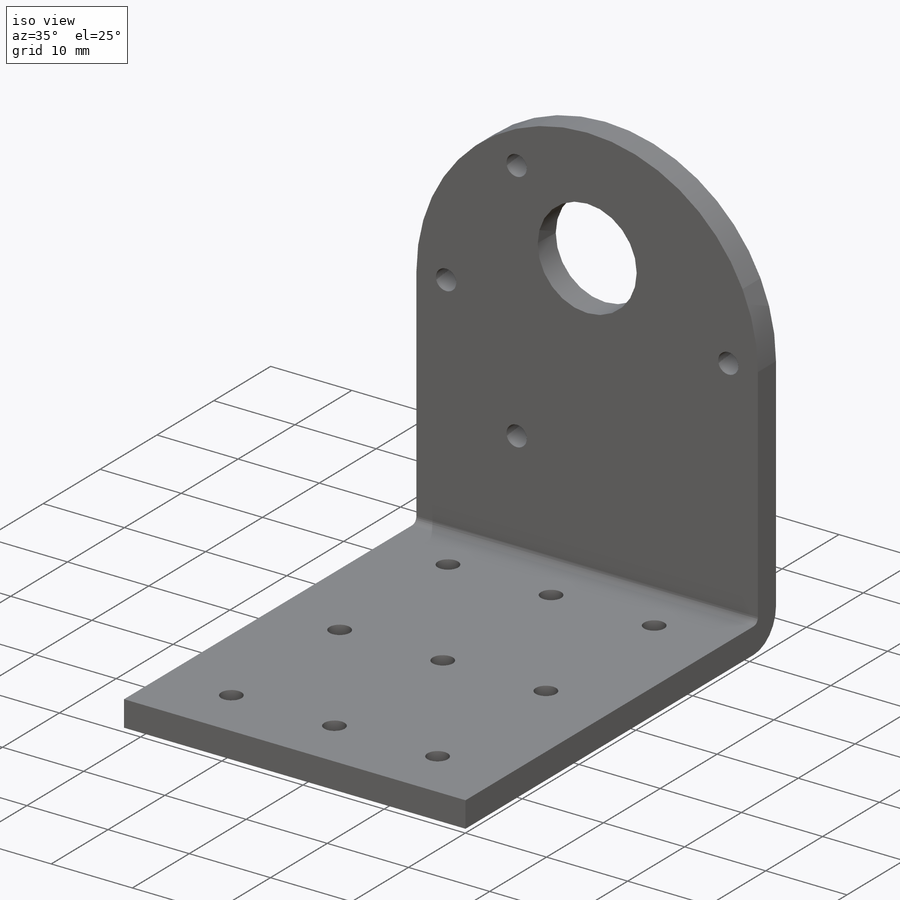
[diagram: iso view]
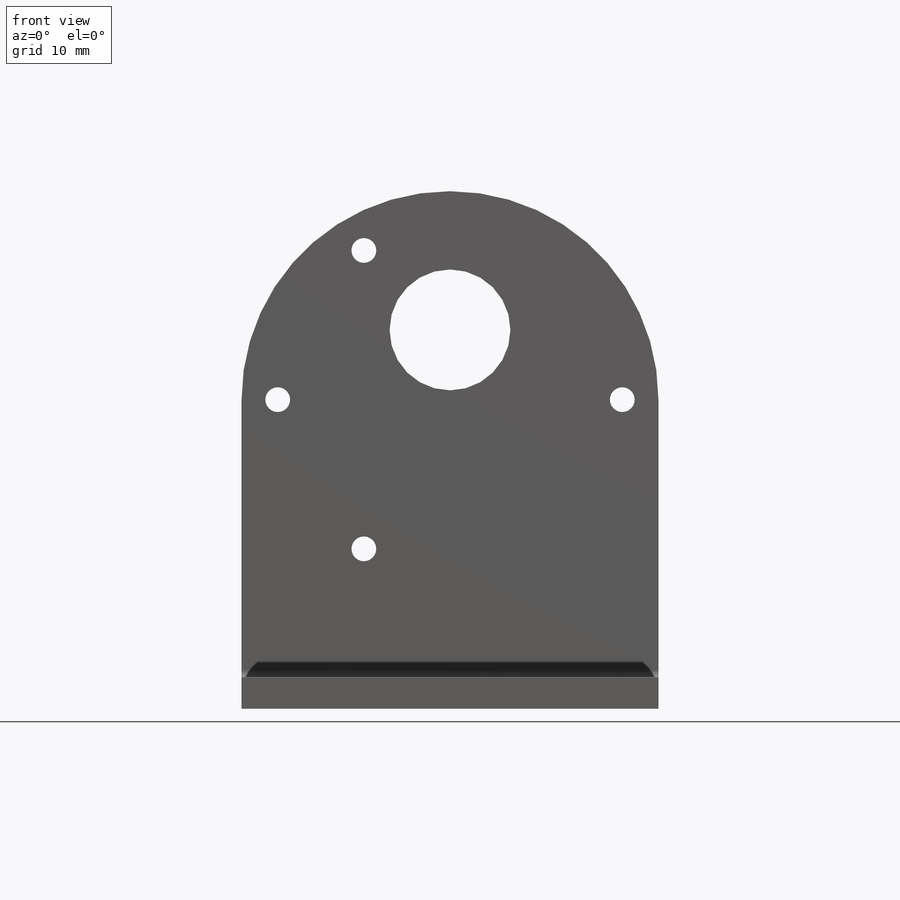
[diagram: front view]
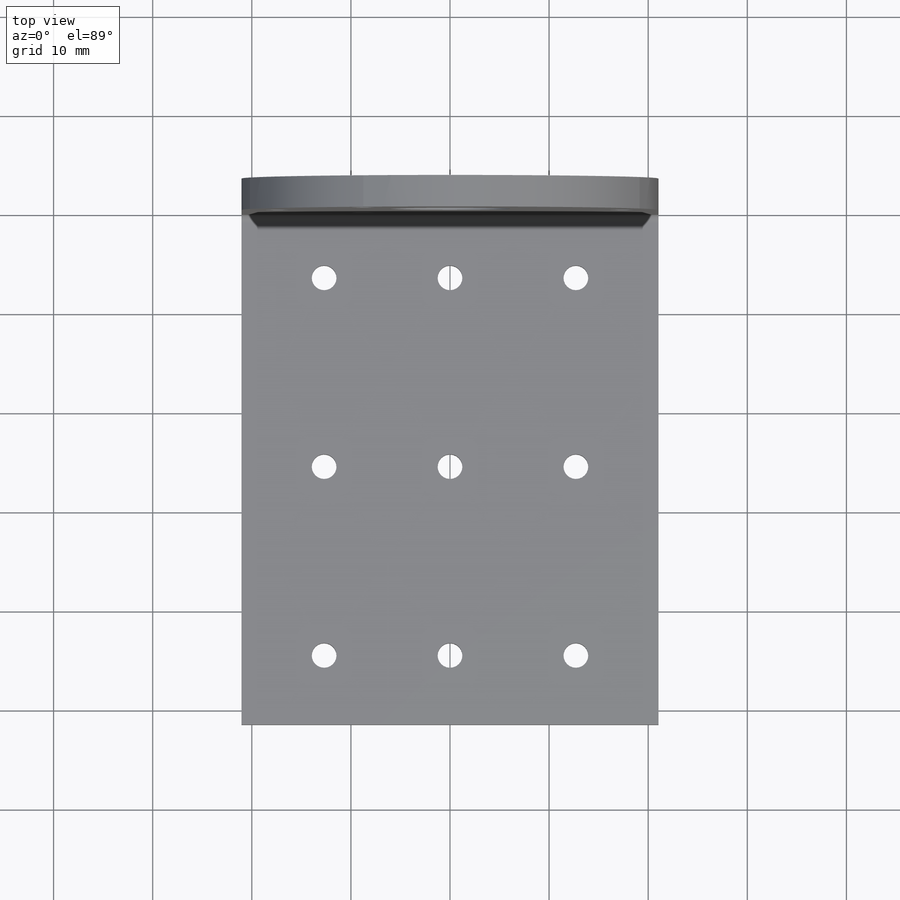
[diagram: top view]
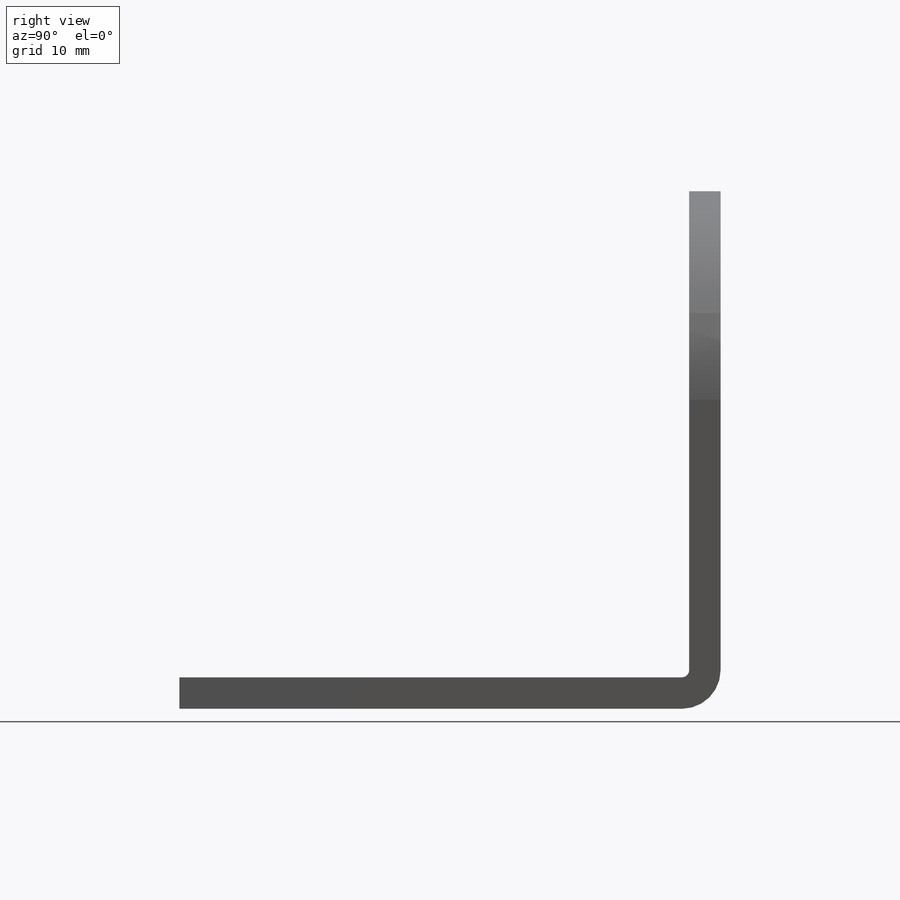
[diagram: right view]
SOLIDWORKS PART (.sldprt)
format: sldprt  version: not decoded by parser v0  size: 458,752 bytes
history: native  units: mm
features: sketch x23, sheet_metal_op x8, pattern_circular x7, plane x3, hole x2, pattern_linear x2, material x1, fillet x1, thread x1, cut_extrude x1 + 13 further entries (+10 scaffold rows collapsed)
feature tree (72):
  scaffold x10  (default folders/planes/origin — collapsed)
  material  "Materiale <non specificato>"
  plane  "Piano frontale"
  plane  "Piano superiore"
  plane  "Piano destro"
  sketch  "Schizzo1"  dims[c1.D2=19.15mm c1.D1=~80.532941mm c2.D2=~81.237311mm c2.D1=42.0624mm c3.D2=52.2224mm c3.D3=52.2224mm c3.D1=0.7366mm c4.D2=0.5 c4.D3=0.0mm c4.D6=500.0mm]
  sheet_metal_op  "Base-Flangia1"
  sketch  "Schizzo8"  dims[c1.D1=51.435mm c2.D1=0.7366mm c2.D2=500.0mm c2.D3=0.0mm c2.D4=90.0deg c2.D5=1.0 c2.D8=0.8683mm c2.D9=0.8683mm c3.D1=0.7366mm c3.D2=500.0mm c3.D3=0.0mm c3.D6=10.0mm c3.D7=54.61mm]
  fillet  "Raccordo1"  Radius=3mm
  hole  "Foro filettato M3x0.5-1"  Diameter=2.5mm Depth=7.5mm
  sketch  "Schizzo10"  dims[c1.D1=8.3312mm c1.D2=8.3312mm c2.D1=8.3312mm c2.D2=6.35mm]
  sketch  "Schizzo9"  dims[hole-wizard template sketch: 50 standard entries collapsed; hole parameters above]
  thread  "Filettatura del foro2"  Diameter=1.7366mm  [1 undecoded]
  pattern_linear  "Ripetizione a L1"  Count1=3 Count2=3 Spacing1=19.05mm Spacing2=12.7mm
  hole  "Foro filettato M3x0.5-2"  Diameter=2.5mm Depth=7.5mm
  sketch  "Schizzo12"  dims[D1=17.3812mm]
  sketch  "Schizzo11"  dims[hole-wizard template sketch: 50 standard entries collapsed; hole parameters above]
  pattern_linear  "Filettatura del foro3"  Spacing1=1.7366mm Spacing2=3mm  [1 undecoded]
  pattern_circular  "RipetizioneCircolare1"  Count=6 Angle=360deg
  sketch  "Schizzo13"  dims[c1.D1=~9.062707mm c1.D2=12.192mm c2.D1=6.65mm c2.D3=35.052mm]
  cut_extrude  "Taglio-Estrusione1"  Depth=10mm
  sketch  "Linee di piegatura1"
  sketch  "Casella di contorno1"
  sheet_metal_op  "Lamiera1"
  "Ripetizione piatta1"
  sketch  "Linee di piegatura2"
  sketch  "Casella di contorno2"
  "Trasformazione dello schizzo1"
  pattern_circular  "Lamiera2"  [2 undecoded]
  sheet_metal_op  "Ripetizione piatta1"
  sketch  "Linee di piegatura2"
  sketch  "Casella di contorno2"
  "Trasformazione dello schizzo1"
  pattern_circular  "Lamiera3"  [2 undecoded]
  sheet_metal_op  "Ripetizione piatta1"
  sketch  "Linee di piegatura2"
  sketch  "Casella di contorno2"
  "Appiattito-<PiegaturaBordo1>1"
  "Trasformazione dello schizzo1"
  pattern_circular  "Lamiera4"  [2 undecoded]
  sheet_metal_op  "Ripetizione piatta1"
  sketch  "Linee di piegatura2"
  sketch  "Casella di contorno2"
  "Appiattito-<PiegaturaBordo1>1"
  "Trasformazione dello schizzo1"
  pattern_circular  "Lamiera5"  [2 undecoded]
  sheet_metal_op  "Ripetizione piatta1"
  sketch  "Linee di piegatura2"
  sketch  "Casella di contorno2"
  "Appiattito-<PiegaturaBordo1>1"
  "Trasformazione dello schizzo1"
  pattern_circular  "Lamiera6"  [2 undecoded]
  sheet_metal_op  "Ripetizione piatta1"
  sketch  "Linee di piegatura2"
  sketch  "Casella di contorno2"
  "Appiattito-<PiegaturaBordo1>1"
  "Trasformazione dello schizzo1"
  pattern_circular  "Lamiera9"  [2 undecoded]
  sheet_metal_op  "Ripetizione piatta1"
  sketch  "Linee di piegatura2"
  sketch  "Casella di contorno2"
  "Appiattito-<PiegaturaBordo1>1"
  "Trasformazione dello schizzo1"
decode coverage: 15 of 45 modeling features carry decoded parameters; 13 rows unclassified (native names shown)
note: ~ marks probable driven/reference dimensions
note: 14 parameter values undecoded
note: suppression state not decoded; provenance and decode notes live in map.json
